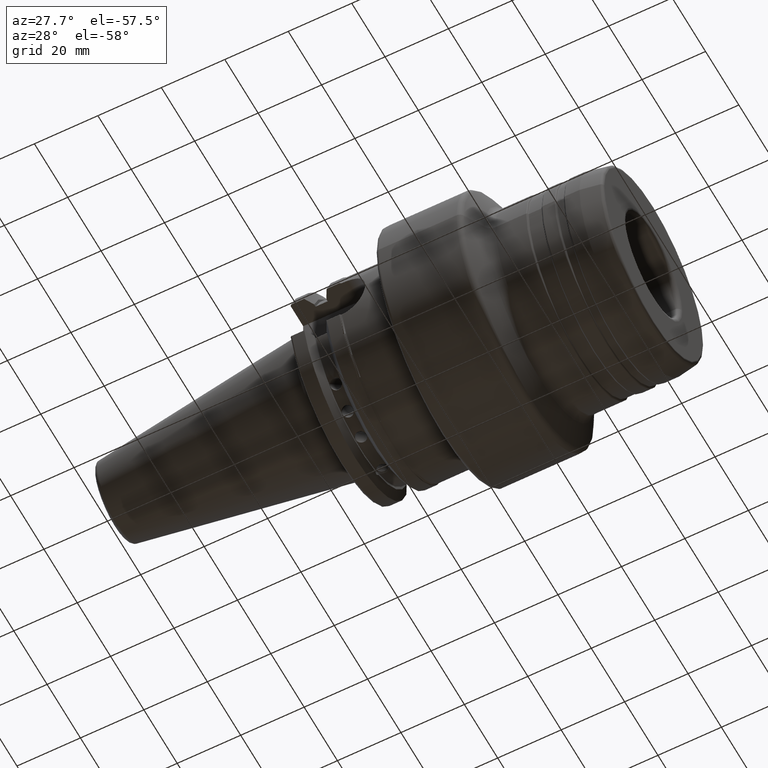
[diagram: clean part render]
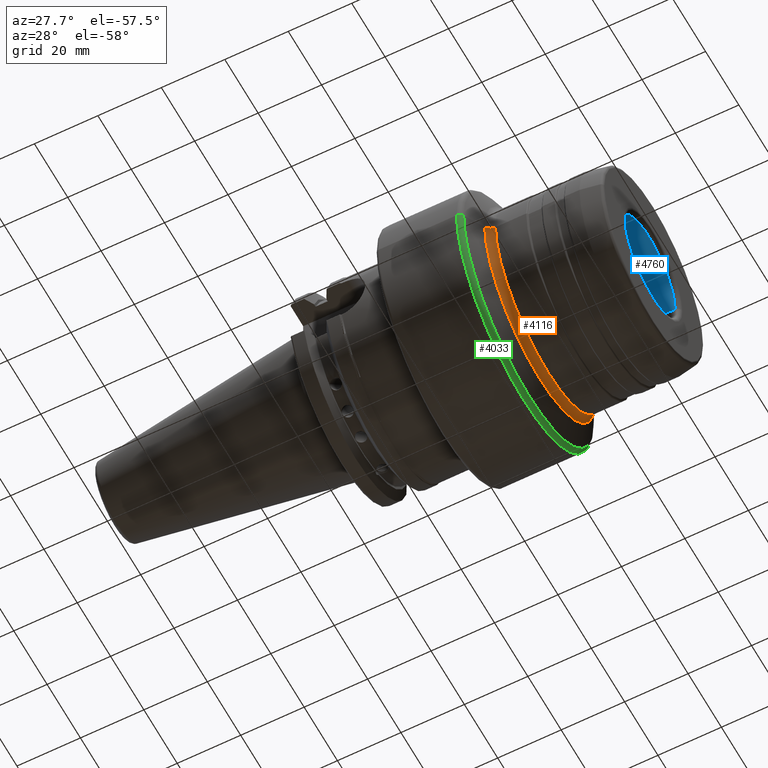
[diagram: same view with three faces highlighted in distinct colors, each labeled with its STEP entity id]
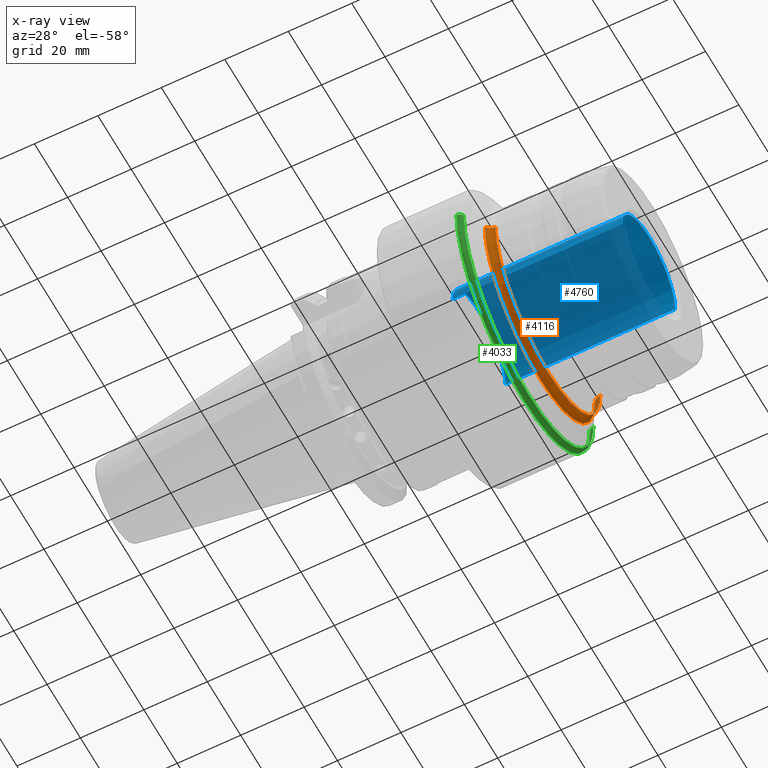
[diagram: x-ray of the same camera — body ghosted, the three highlighted faces saturated]
A machine part, auxiliary view with three faces highlighted in distinct colors.
The next image is the same camera in x-ray (body ghosted, the three faces saturated) — at least one of them is partly hidden behind the body in this view.
Their STEP definitions:

[orange] entity #4116 — the highlighted toroidal blend (fillet) surface has major radius 34.4932 mm and minor (blend) radius 2.9972 mm.
#1351=CARTESIAN_POINT('',(2.690127331764E0,1.358E0,-2.028065215764E-14));
#1352=DIRECTION('',(0.E0,1.493423440468E-14,1.E0));
#1353=DIRECTION('',(-8.660254037845E-1,-5.E-1,0.E0));
#1354=AXIS2_PLACEMENT_3D('',#1351,#1352,#1353);
#1356=CARTESIAN_POINT('',(2.690127331764E0,-1.358E0,2.012452704481E-14));
#1357=DIRECTION('',(0.E0,-1.482147737875E-14,-1.E0));
#1358=DIRECTION('',(-8.660254037845E-1,5.E-1,0.E0));
#1359=AXIS2_PLACEMENT_3D('',#1356,#1357,#1358);
#1361=CARTESIAN_POINT('',(2.587936334118E0,0.E0,0.E0));
#1362=DIRECTION('',(1.E0,0.E0,0.E0));
#1363=DIRECTION('',(0.E0,-1.E0,0.E0));
#1364=AXIS2_PLACEMENT_3D('',#1361,#1362,#1363);
#1388=CARTESIAN_POINT('',(2.690127331764E0,0.E0,0.E0));
#1389=DIRECTION('',(1.E0,0.E0,0.E0));
#1390=DIRECTION('',(0.E0,-1.E0,0.E0));
#1391=AXIS2_PLACEMENT_3D('',#1388,#1389,#1390);
#2705=CARTESIAN_POINT('',(2.587936334118E0,-1.299E0,0.E0));
#2706=CARTESIAN_POINT('',(2.587936334118E0,1.299E0,0.E0));
#2707=VERTEX_POINT('',#2705);
#2708=VERTEX_POINT('',#2706);
#2709=CARTESIAN_POINT('',(2.690127331764E0,-1.24E0,0.E0));
#2710=CARTESIAN_POINT('',(2.690127331764E0,1.24E0,0.E0));
#2711=VERTEX_POINT('',#2709);
#2712=VERTEX_POINT('',#2710);
#4103=CARTESIAN_POINT('',(2.690127331764E0,0.E0,0.E0));
#4104=DIRECTION('',(1.E0,0.E0,0.E0));
#4105=DIRECTION('',(0.E0,-9.999564454515E-1,9.333123803004E-3));
#4106=AXIS2_PLACEMENT_3D('',#4103,#4104,#4105);
#4107=TOROIDAL_SURFACE('',#4106,1.358E0,1.18E-1);
#4109=ORIENTED_EDGE('',*,*,#4108,.F.);
#4110=ORIENTED_EDGE('',*,*,#4098,.T.);
#4112=ORIENTED_EDGE('',*,*,#4111,.T.);
#4113=ORIENTED_EDGE('',*,*,#4094,.F.);
#4114=EDGE_LOOP('',(#4109,#4110,#4112,#4113));
#4115=FACE_OUTER_BOUND('',#4114,.F.);
#4116=ADVANCED_FACE('',(#4115),#4107,.F.);
#1355=CIRCLE('',#1354,1.18E-1);
#1360=CIRCLE('',#1359,1.18E-1);
#1365=CIRCLE('',#1364,1.299E0);
#1392=CIRCLE('',#1391,1.24E0);
#4094=EDGE_CURVE('',#2708,#2712,#1355,.T.);
#4098=EDGE_CURVE('',#2707,#2711,#1360,.T.);
#4108=EDGE_CURVE('',#2707,#2708,#1365,.T.);
#4111=EDGE_CURVE('',#2711,#2712,#1392,.T.);

[blue] entity #4760 — the highlighted cylindrical surface (partial cylindrical patch) has radius 15.875 mm, axis along (-1, 0, 0).
#1799=DIRECTION('',(-1.E0,0.E0,-1.501695125773E-11));
#1800=VECTOR('',#1799,2.106E0);
#1801=CARTESIAN_POINT('',(3.941E0,6.25E-1,3.162577588921E-11));
#1802=LINE('',#1801,#1800);
#1803=CARTESIAN_POINT('',(3.941E0,0.E0,0.E0));
#1804=DIRECTION('',(-1.E0,0.E0,0.E0));
#1805=DIRECTION('',(0.E0,-1.E0,0.E0));
#1806=AXIS2_PLACEMENT_3D('',#1803,#1804,#1805);
#1808=CARTESIAN_POINT('',(1.835E0,0.E0,0.E0));
#1809=DIRECTION('',(-1.E0,0.E0,0.E0));
#1810=DIRECTION('',(0.E0,-1.E0,0.E0));
#1811=AXIS2_PLACEMENT_3D('',#1808,#1809,#1810);
#1813=DIRECTION('',(-1.E0,0.E0,1.501695849039E-11));
#1814=VECTOR('',#1813,2.106E0);
#1815=CARTESIAN_POINT('',(3.941E0,-6.25E-1,-3.162579112119E-11));
#1816=LINE('',#1815,#1814);
#2623=CARTESIAN_POINT('',(1.835E0,-6.25E-1,0.E0));
#2624=CARTESIAN_POINT('',(1.835E0,6.25E-1,0.E0));
#2625=VERTEX_POINT('',#2623);
#2626=VERTEX_POINT('',#2624);
#2651=CARTESIAN_POINT('',(3.941E0,-6.25E-1,0.E0));
#2652=CARTESIAN_POINT('',(3.941E0,6.25E-1,0.E0));
#2653=VERTEX_POINT('',#2651);
#2654=VERTEX_POINT('',#2652);
#4748=CARTESIAN_POINT('',(4.E0,0.E0,0.E0));
#4749=DIRECTION('',(-1.E0,0.E0,0.E0));
#4750=DIRECTION('',(0.E0,-1.E0,0.E0));
#4751=AXIS2_PLACEMENT_3D('',#4748,#4749,#4750);
#4752=CYLINDRICAL_SURFACE('',#4751,6.25E-1);
#4753=ORIENTED_EDGE('',*,*,#4713,.T.);
#4754=ORIENTED_EDGE('',*,*,#4743,.T.);
#4756=ORIENTED_EDGE('',*,*,#4755,.F.);
#4757=ORIENTED_EDGE('',*,*,#4739,.F.);
#4758=EDGE_LOOP('',(#4753,#4754,#4756,#4757));
#4759=FACE_OUTER_BOUND('',#4758,.F.);
#4760=ADVANCED_FACE('',(#4759),#4752,.F.);
#1807=CIRCLE('',#1806,6.25E-1);
#1812=CIRCLE('',#1811,6.25E-1);
#4713=EDGE_CURVE('',#2653,#2654,#1807,.T.);
#4739=EDGE_CURVE('',#2653,#2625,#1816,.T.);
#4743=EDGE_CURVE('',#2654,#2626,#1802,.T.);
#4755=EDGE_CURVE('',#2625,#2626,#1812,.T.);

[green] entity #4033 — the highlighted toroidal blend (fillet) surface has major radius 37.9984 mm and minor (blend) radius 2.0066 mm.
#1298=CARTESIAN_POINT('',(2.382976988555E0,0.E0,0.E0));
#1299=DIRECTION('',(-1.E0,0.E0,0.E0));
#1300=DIRECTION('',(0.E0,1.E0,0.E0));
#1301=AXIS2_PLACEMENT_3D('',#1298,#1299,#1300);
#1316=CARTESIAN_POINT('',(2.382976988555E0,1.496E0,1.665296546494E-11));
#1317=DIRECTION('',(0.E0,1.113166329947E-11,-1.E0));
#1318=DIRECTION('',(1.349131776760E-13,1.E0,1.113166329947E-11));
#1319=AXIS2_PLACEMENT_3D('',#1316,#1317,#1318);
#1321=CARTESIAN_POINT('',(2.382976988555E0,-1.496E0,-1.665406007545E-11));
#1322=DIRECTION('',(0.E0,-1.113239448541E-11,1.E0));
#1323=DIRECTION('',(1.349131776760E-13,-1.E0,-1.113239448541E-11));
#1324=AXIS2_PLACEMENT_3D('',#1321,#1322,#1323);
#1370=CARTESIAN_POINT('',(2.451392995454E0,0.E0,0.E0));
#1371=DIRECTION('',(-1.E0,0.E0,0.E0));
#1372=DIRECTION('',(0.E0,1.E0,0.E0));
#1373=AXIS2_PLACEMENT_3D('',#1370,#1371,#1372);
#2697=CARTESIAN_POINT('',(2.382976988555E0,1.575E0,0.E0));
#2698=CARTESIAN_POINT('',(2.382976988555E0,-1.575E0,0.E0));
#2699=VERTEX_POINT('',#2697);
#2700=VERTEX_POINT('',#2698);
#2701=CARTESIAN_POINT('',(2.451392995454E0,1.5355E0,0.E0));
#2702=CARTESIAN_POINT('',(2.451392995454E0,-1.5355E0,0.E0));
#2703=VERTEX_POINT('',#2701);
#2704=VERTEX_POINT('',#2702);
#4019=CARTESIAN_POINT('',(2.382976988555E0,0.E0,0.E0));
#4020=DIRECTION('',(1.E0,0.E0,0.E0));
#4021=DIRECTION('',(0.E0,9.999715484118E-1,7.543365748481E-3));
#4022=AXIS2_PLACEMENT_3D('',#4019,#4020,#4021);
#4023=TOROIDAL_SURFACE('',#4022,1.496E0,7.9E-2);
#4024=ORIENTED_EDGE('',*,*,#4009,.T.);
#4026=ORIENTED_EDGE('',*,*,#4025,.T.);
#4028=ORIENTED_EDGE('',*,*,#4027,.F.);
#4030=ORIENTED_EDGE('',*,*,#4029,.F.);
#4031=EDGE_LOOP('',(#4024,#4026,#4028,#4030));
#4032=FACE_OUTER_BOUND('',#4031,.F.);
#4033=ADVANCED_FACE('',(#4032),#4023,.T.);
#1302=CIRCLE('',#1301,1.575E0);
#1320=CIRCLE('',#1319,7.9E-2);
#1325=CIRCLE('',#1324,7.9E-2);
#1374=CIRCLE('',#1373,1.5355E0);
#4009=EDGE_CURVE('',#2699,#2700,#1302,.T.);
#4025=EDGE_CURVE('',#2700,#2704,#1325,.T.);
#4027=EDGE_CURVE('',#2703,#2704,#1374,.T.);
#4029=EDGE_CURVE('',#2699,#2703,#1320,.T.);